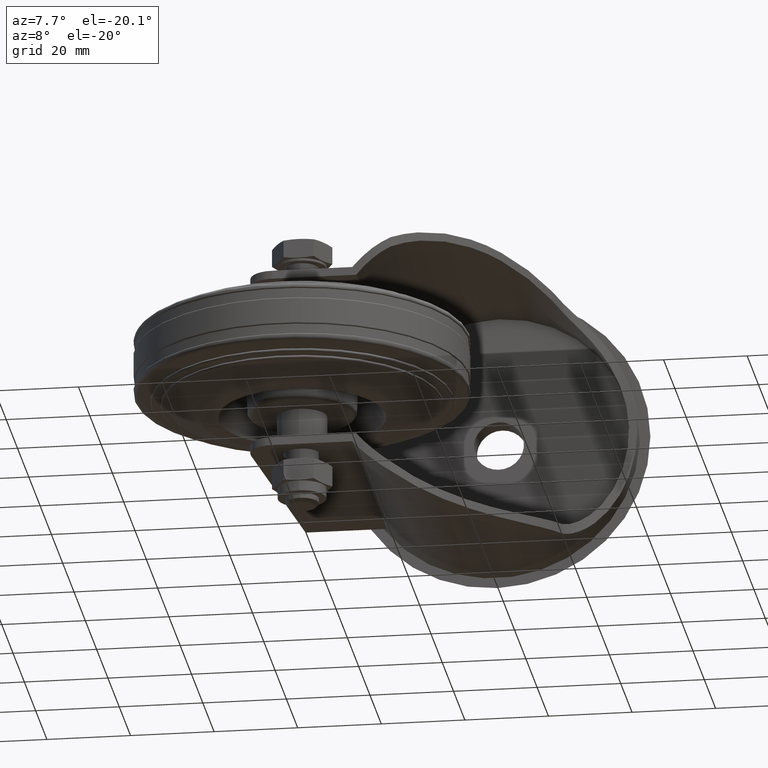
[diagram: clean part render]
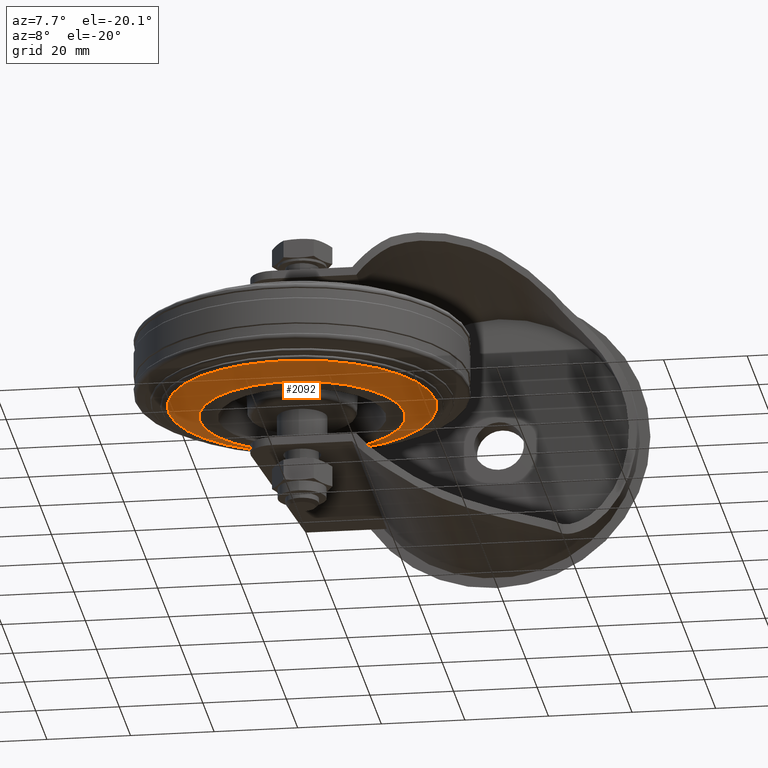
[diagram: same view with one face highlighted and labeled with its STEP entity id]
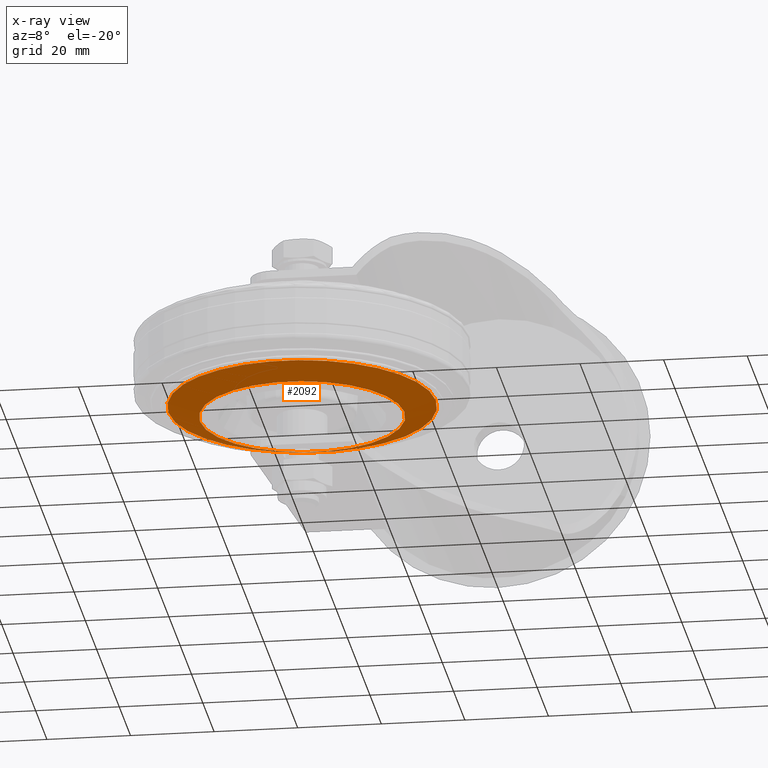
[diagram: x-ray of the same camera — body ghosted, the highlighted face saturated]
A machine part, auxiliary view. The second image highlights one B-rep face of the part: STEP entity #2092.
The next image is the same camera in x-ray: the body ghosted, the highlighted face saturated — about 2% of this face is hidden behind the body in this view.
In plain terms, the highlighted conical surface has half-angle 71 deg.
Its self-contained STEP definition (entity closure, byte-faithful):
#182=CONICAL_SURFACE('',#2458,24.4746766361272,1.23918376891597);
#382=FACE_OUTER_BOUND('',#544,.T.);
#544=EDGE_LOOP('',(#1835,#1836,#1837,#1838,#1839));
#678=CIRCLE('',#2456,24.4746766361272);
#679=CIRCLE('',#2457,24.4746766361272);
#680=CIRCLE('',#2459,32.);
#784=LINE('',#3993,#862);
#862=VECTOR('',#3059,24.4746766361272);
#1025=VERTEX_POINT('',#3985);
#1026=VERTEX_POINT('',#3987);
#1027=VERTEX_POINT('',#3991);
#1298=EDGE_CURVE('',#1025,#1026,#678,.T.);
#1299=EDGE_CURVE('',#1026,#1025,#679,.T.);
#1300=EDGE_CURVE('',#1027,#1027,#680,.T.);
#1301=EDGE_CURVE('',#1027,#1026,#784,.T.);
#1835=ORIENTED_EDGE('',*,*,#1300,.T.);
#1836=ORIENTED_EDGE('',*,*,#1301,.T.);
#1837=ORIENTED_EDGE('',*,*,#1298,.F.);
#1838=ORIENTED_EDGE('',*,*,#1299,.F.);
#1839=ORIENTED_EDGE('',*,*,#1301,.F.);
#2092=ADVANCED_FACE('',(#382),#182,.T.);
#2456=AXIS2_PLACEMENT_3D('',#3988,#3051,#3052);
#2457=AXIS2_PLACEMENT_3D('',#3989,#3053,#3054);
#2458=AXIS2_PLACEMENT_3D('',#3990,#3055,#3056);
#2459=AXIS2_PLACEMENT_3D('',#3992,#3057,#3058);
#3051=DIRECTION('center_axis',(6.12323399573677E-17,0.,-1.));
#3052=DIRECTION('ref_axis',(-1.,0.,-6.12323399573677E-17));
#3053=DIRECTION('center_axis',(6.12323399573677E-17,0.,-1.));
#3054=DIRECTION('ref_axis',(-1.,0.,-6.12323399573677E-17));
#3055=DIRECTION('center_axis',(-6.12323399573677E-17,0.,1.));
#3056=DIRECTION('ref_axis',(1.,0.,6.12323399573677E-17));
#3057=DIRECTION('center_axis',(6.12323399573677E-17,0.,-1.));
#3058=DIRECTION('ref_axis',(-1.,0.,-6.12323399573677E-17));
#3059=DIRECTION('',(0.945518575599316,1.15792629714207E-16,-0.32556815445716));
#3985=CARTESIAN_POINT('',(24.4746766361272,-2.99728344025997E-15,-12.336555726798));
#3987=CARTESIAN_POINT('',(-24.4746766361272,0.,-12.336555726798));
#3988=CARTESIAN_POINT('Origin',(7.55396174166303E-16,0.,-12.336555726798));
#3989=CARTESIAN_POINT('Origin',(7.55396174166303E-16,0.,-12.336555726798));
#3990=CARTESIAN_POINT('Origin',(7.55396174166303E-16,0.,-12.336555726798));
#3991=CARTESIAN_POINT('',(-32.,0.,-9.74537909368268));
#3992=CARTESIAN_POINT('Origin',(5.96732365677801E-16,0.,-9.74537909368268));
#3993=CARTESIAN_POINT('',(-24.4746766361272,-2.99728344025997E-15,-12.336555726798));